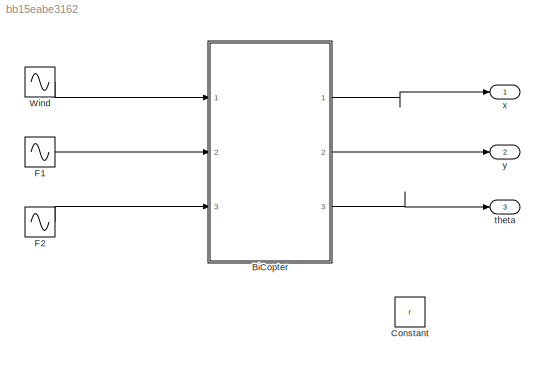
MODEL slx_bb15eabe3162
KIND model
CONFIG AbsTol = auto
CONFIG FixedStep = auto
CONFIG MaxStep = auto
CONFIG MinStep = auto
CONFIG RelTol = 1e-3
CONFIG SampleTimeConstraint = Unconstrained
CONFIG Solver = VariableStepAuto
CONFIG SolverMode = Auto
CONFIG SolverName = VariableStepAuto
CONFIG StartTime = 0.0
CONFIG StopTime = 10.0
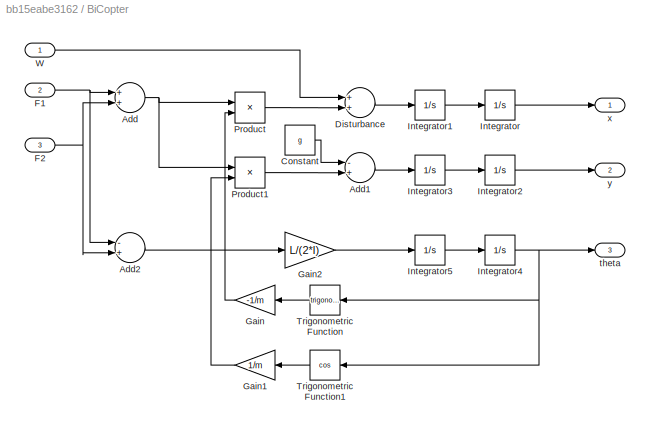
BLOCK [SubSystem] BiCopter
  Ports = [3, 3]
  RequestExecContextInheritance = off
  Variant = off
BLOCK [Sum] BiCopter/Add
  InputSameDT = off
  OutDataTypeStr = Inherit: Inherit via internal rule
  Ports = [2, 1]
  SaturateOnIntegerOverflow = off
BLOCK [Sum] BiCopter/Add1
  InputSameDT = off
  Inputs = -+
  OutDataTypeStr = Inherit: Inherit via internal rule
  Ports = [2, 1]
  SaturateOnIntegerOverflow = off
BLOCK [Sum] BiCopter/Add2
  InputSameDT = off
  Inputs = -+
  OutDataTypeStr = Inherit: Inherit via internal rule
  Ports = [2, 1]
  SaturateOnIntegerOverflow = off
BLOCK [Constant] BiCopter/Constant
  Value = g
BLOCK [Sum] BiCopter/Disturbance
  InputSameDT = off
  OutDataTypeStr = Inherit: Inherit via internal rule
  Ports = [2, 1]
  SaturateOnIntegerOverflow = off
BLOCK [Inport] BiCopter/F1
  IconDisplay = Port number
  Port = 2
BLOCK [Inport] BiCopter/F2
  IconDisplay = Port number
  Port = 3
BLOCK [Gain] BiCopter/Gain
  Gain = -1/m
  OutDataTypeStr = Inherit: Inherit via internal rule
  ParamDataTypeStr = Inherit: Inherit via internal rule
  SaturateOnIntegerOverflow = off
BLOCK [Gain] BiCopter/Gain1
  Gain = 1/m
  OutDataTypeStr = Inherit: Inherit via internal rule
  ParamDataTypeStr = Inherit: Inherit via internal rule
  SaturateOnIntegerOverflow = off
BLOCK [Gain] BiCopter/Gain2
  Gain = L/(2*I)
  OutDataTypeStr = Inherit: Inherit via internal rule
  ParamDataTypeStr = Inherit: Inherit via internal rule
  SaturateOnIntegerOverflow = off
BLOCK [Integrator] BiCopter/Integrator
  Ports = [1, 1]
BLOCK [Integrator] BiCopter/Integrator1
  Ports = [1, 1]
BLOCK [Integrator] BiCopter/Integrator2
  Ports = [1, 1]
BLOCK [Integrator] BiCopter/Integrator3
  Ports = [1, 1]
BLOCK [Integrator] BiCopter/Integrator4
  Ports = [1, 1]
BLOCK [Integrator] BiCopter/Integrator5
  Ports = [1, 1]
BLOCK [Product] BiCopter/Product
  InputSameDT = off
  OutDataTypeStr = Inherit: Inherit via internal rule
  Ports = [2, 1]
  RndMeth = Floor
  SaturateOnIntegerOverflow = off
BLOCK [Product] BiCopter/Product1
  InputSameDT = off
  OutDataTypeStr = Inherit: Inherit via internal rule
  Ports = [2, 1]
  RndMeth = Floor
  SaturateOnIntegerOverflow = off
BLOCK [Trigonometry] BiCopter/Trigonometric Function
  Ports = [1, 1]
BLOCK [Trigonometry] BiCopter/Trigonometric Function1
  Operator = cos
  Ports = [1, 1]
BLOCK [Inport] BiCopter/W
  IconDisplay = Port number
BLOCK [Outport] BiCopter/theta
  IconDisplay = Port number
  Port = 3
BLOCK [Outport] BiCopter/x
  IconDisplay = Port number
BLOCK [Outport] BiCopter/y
  IconDisplay = Port number
  Port = 2
BLOCK [Constant] Constant
  Value = r
BLOCK [Sin] F1
  Amplitude = 0.5
  Bias = 0.6*m*g
  Frequency = 10
  Phase = pi/2
  Ports = [0, 1]
  SampleTime = 0
BLOCK [Sin] F2
  Amplitude = 0.5
  Bias = 0.6*m*g
  Frequency = 10
  Ports = [0, 1]
  SampleTime = 0
BLOCK [Sin] Wind
  Amplitude = 0
  Frequency = 2
  Phase = pi/2
  Ports = [0, 1]
  SampleTime = 0
BLOCK [Outport] theta
  IconDisplay = Port number
  Port = 3
BLOCK [Outport] x
  IconDisplay = Port number
BLOCK [Outport] y
  IconDisplay = Port number
  Port = 2
LINE BiCopter/Add1:1 -> BiCopter/Integrator3:1
LINE BiCopter/Add2:1 -> BiCopter/Gain2:1
NET BiCopter/Add:1 -> BiCopter/Product1:1, BiCopter/Product:1
LINE BiCopter/Constant:1 -> BiCopter/Add1:1
LINE BiCopter/Disturbance:1 -> BiCopter/Integrator1:1
NET BiCopter/F1:1 -> BiCopter/Add2:1, BiCopter/Add:1
NET BiCopter/F2:1 -> BiCopter/Add2:2, BiCopter/Add:2
LINE BiCopter/Gain1:1 -> BiCopter/Product1:2
LINE BiCopter/Gain2:1 -> BiCopter/Integrator5:1
LINE BiCopter/Gain:1 -> BiCopter/Product:2
LINE BiCopter/Integrator1:1 -> BiCopter/Integrator:1
LINE BiCopter/Integrator2:1 -> BiCopter/y:1
LINE BiCopter/Integrator3:1 -> BiCopter/Integrator2:1
NET BiCopter/Integrator4:1 -> BiCopter/Trigonometric Function1:1, BiCopter/Trigonometric Function:1, BiCopter/theta:1
LINE BiCopter/Integrator5:1 -> BiCopter/Integrator4:1
LINE BiCopter/Integrator:1 -> BiCopter/x:1
LINE BiCopter/Product1:1 -> BiCopter/Add1:2
LINE BiCopter/Product:1 -> BiCopter/Disturbance:2
LINE BiCopter/Trigonometric Function1:1 -> BiCopter/Gain1:1
LINE BiCopter/Trigonometric Function:1 -> BiCopter/Gain:1
LINE BiCopter/W:1 -> BiCopter/Disturbance:1
LINE BiCopter:1 -> x:1
LINE BiCopter:2 -> y:1
LINE BiCopter:3 -> theta:1
LINE F1:1 -> BiCopter:2
LINE F2:1 -> BiCopter:3
LINE Wind:1 -> BiCopter:1
note: NET lines group one-source signal fan-out (src -> all destinations, sorted); 1:1 wires keep LINE
